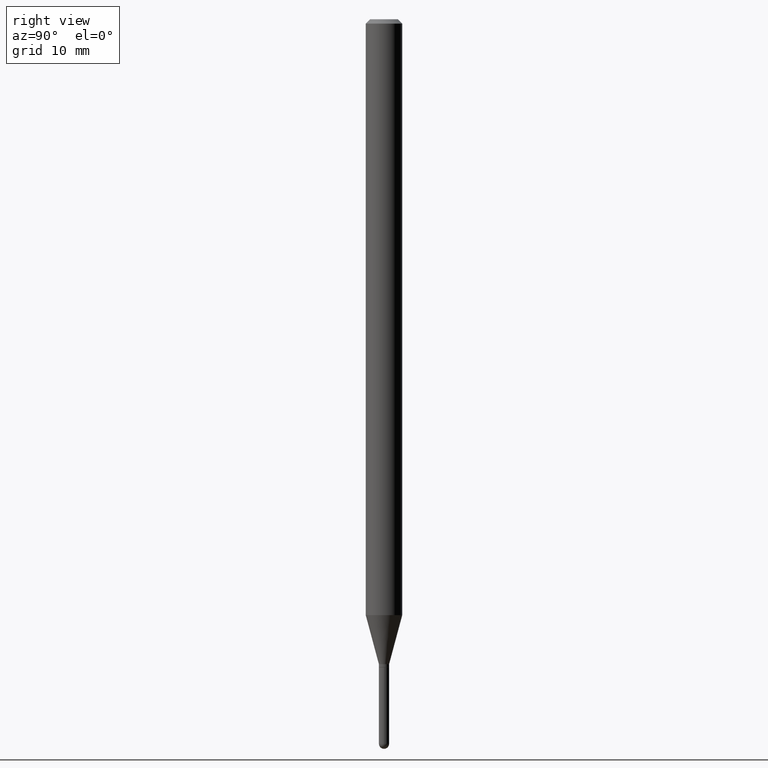
[diagram: clean part render]
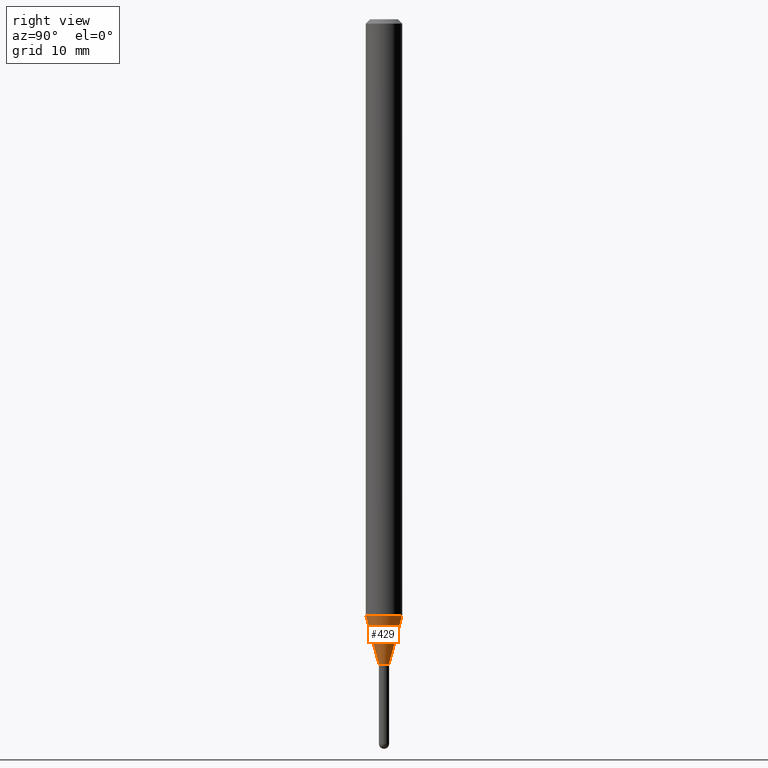
[diagram: same view with one face highlighted and labeled with its STEP entity id]
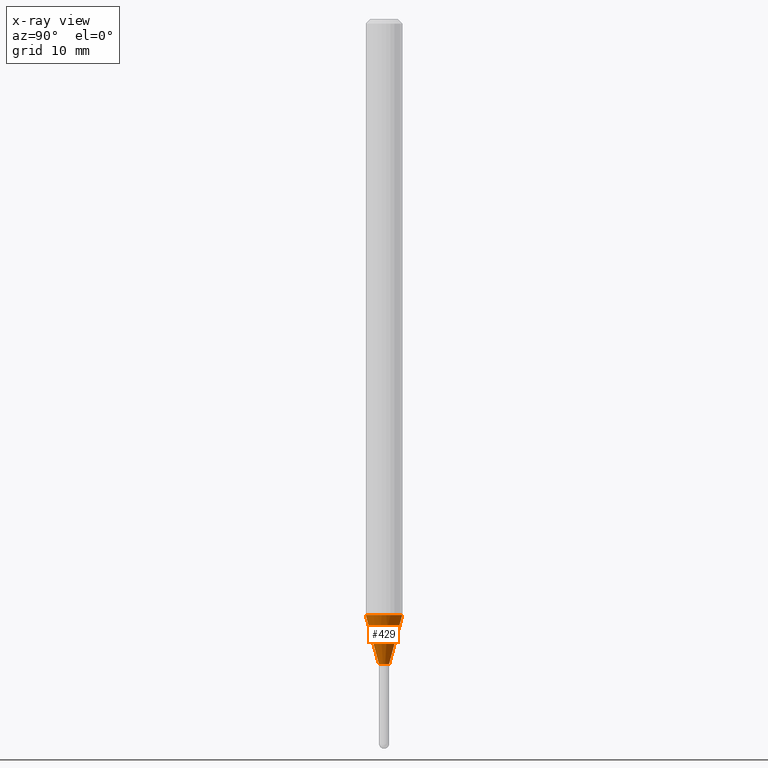
[diagram: x-ray of the same camera — body ghosted, the highlighted face saturated]
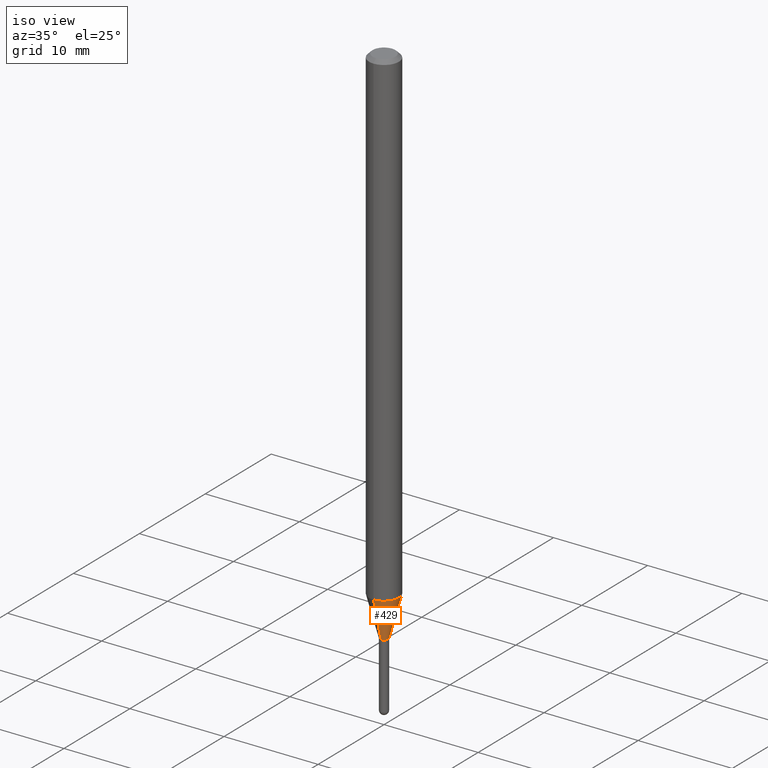
[diagram: same view with one face highlighted and labeled with its STEP entity id]
A machine part, right view. The second image highlights one B-rep face of the part: STEP entity #429.
The next image is the same camera in x-ray: the body ghosted, the highlighted face saturated — about 0% of this face is hidden behind the body in this view.
A second angle (iso view) of the same face is appended — the face is thin or edge-on in the first view.
In plain terms, the highlighted conical surface has half-angle 15 deg.
Its self-contained STEP definition (entity closure, byte-faithful):
#33 = DIRECTION ( 'NONE',  ( -6.982962677686265922E-15, -1.000000000000000000, 0.000000000000000000 ) ) ;
#60 = DIRECTION ( 'NONE',  ( -2.445449650691490945E-29, 3.491508770600309378E-15, 1.000000000000000000 ) ) ;
#70 = VERTEX_POINT ( 'NONE', #264 ) ;
#71 = CARTESIAN_POINT ( 'NONE',  ( 4.993749322560243960E-29, -7.129862417313810105E-15, -2.042057713659399809 ) ) ;
#91 = EDGE_CURVE ( 'NONE', #315, #70, #158, .T. ) ;
#102 = DIRECTION ( 'NONE',  ( 1.839019923739599921E-15, 0.2588190451025249028, 0.9659258262890670910 ) ) ;
#114 = ORIENTED_EDGE ( 'NONE', *, *, #206, .T. ) ;
#116 = LINE ( 'NONE', #474, #459 ) ;
#119 = AXIS2_PLACEMENT_3D ( 'NONE', #357, #401, #33 ) ;
#156 = CARTESIAN_POINT ( 'NONE',  ( 2.842170943040908632E-16, 0.01749999999999193520, -2.210000000000000409 ) ) ;
#158 = CIRCLE ( 'NONE', #322, 0.06250000000000000000 ) ;
#165 = CONICAL_SURFACE ( 'NONE', #451, 0.01749999999999965125, 0.2617993877991502405 ) ;
#179 = EDGE_CURVE ( 'NONE', #406, #315, #198, .T. ) ;
#198 = LINE ( 'NONE', #236, #422 ) ;
#206 = EDGE_CURVE ( 'NONE', #381, #70, #116, .T. ) ;
#236 = CARTESIAN_POINT ( 'NONE',  ( -1.222018468594531603E-16, -0.01750000000000736730, -2.210000000000000409 ) ) ;
#248 = EDGE_CURVE ( 'NONE', #406, #381, #488, .T. ) ;
#250 = CARTESIAN_POINT ( 'NONE',  ( -1.222018468594531603E-16, -0.01750000000000736730, -2.210000000000000409 ) ) ;
#264 = CARTESIAN_POINT ( 'NONE',  ( 4.440892098501123144E-16, 0.06249999999999285294, -2.042057713659400253 ) ) ;
#293 = DIRECTION ( 'NONE',  ( -6.982962677686265922E-15, -1.000000000000000000, 0.000000000000000000 ) ) ;
#310 = CARTESIAN_POINT ( 'NONE',  ( -4.364351673553418233E-16, -0.06250000000000713318, -2.042057713659399809 ) ) ;
#311 = ORIENTED_EDGE ( 'NONE', *, *, #248, .T. ) ;
#315 = VERTEX_POINT ( 'NONE', #310 ) ;
#322 = AXIS2_PLACEMENT_3D ( 'NONE', #71, #60, #496 ) ;
#343 = CARTESIAN_POINT ( 'NONE',  ( 5.404443728028195647E-29, -7.716234383026684518E-15, -2.210000000000000409 ) ) ;
#357 = CARTESIAN_POINT ( 'NONE',  ( 5.404443728028195647E-29, -7.716234383026684518E-15, -2.210000000000000409 ) ) ;
#367 = ORIENTED_EDGE ( 'NONE', *, *, #91, .F. ) ;
#381 = VERTEX_POINT ( 'NONE', #156 ) ;
#401 = DIRECTION ( 'NONE',  ( -2.445449650691490945E-29, 3.491508770600309378E-15, 1.000000000000000000 ) ) ;
#406 = VERTEX_POINT ( 'NONE', #250 ) ;
#414 = DIRECTION ( 'NONE',  ( -2.445449650691490945E-29, 3.491508770600309378E-15, 1.000000000000000000 ) ) ;
#417 = FACE_OUTER_BOUND ( 'NONE', #476, .T. ) ;
#422 = VECTOR ( 'NONE', #506, 39.37007874015748143 ) ;
#426 = ORIENTED_EDGE ( 'NONE', *, *, #179, .F. ) ;
#429 = ADVANCED_FACE ( 'NONE', ( #417 ), #165, .T. ) ;
#451 = AXIS2_PLACEMENT_3D ( 'NONE', #343, #414, #293 ) ;
#459 = VECTOR ( 'NONE', #102, 39.37007874015748143 ) ;
#474 = CARTESIAN_POINT ( 'NONE',  ( 1.243449787580690915E-16, 0.01749999999999193520, -2.210000000000000409 ) ) ;
#476 = EDGE_LOOP ( 'NONE', ( #311, #114, #367, #426 ) ) ;
#488 = CIRCLE ( 'NONE', #119, 0.01749999999999965125 ) ;
#496 = DIRECTION ( 'NONE',  ( -6.982962677686265922E-15, -1.000000000000000000, 4.370956789862821150E-15 ) ) ;
#506 = DIRECTION ( 'NONE',  ( -1.807323732225329745E-15, -0.2588190451025181305, 0.9659258262890689783 ) ) ;